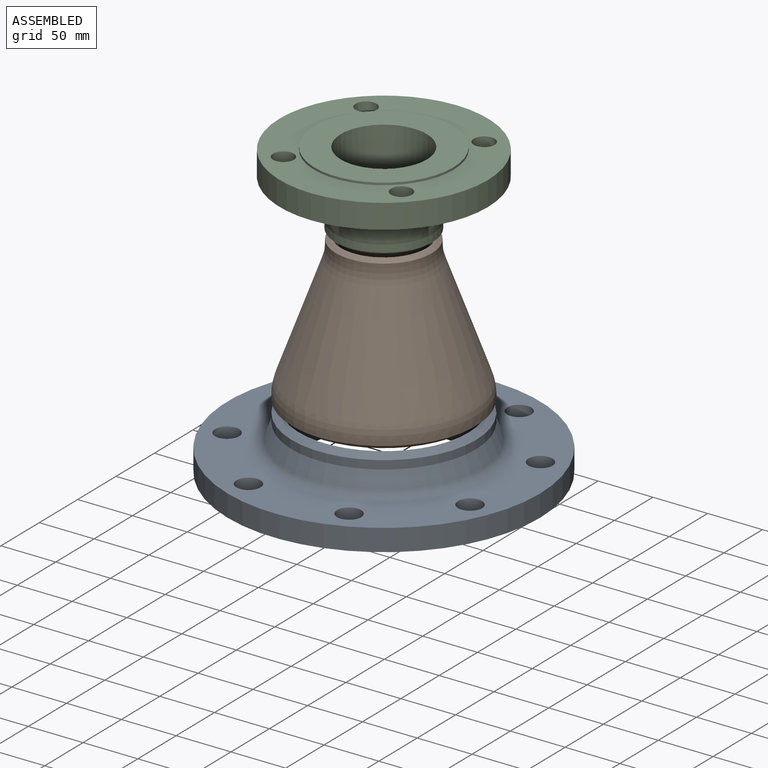
[diagram: assembled view]
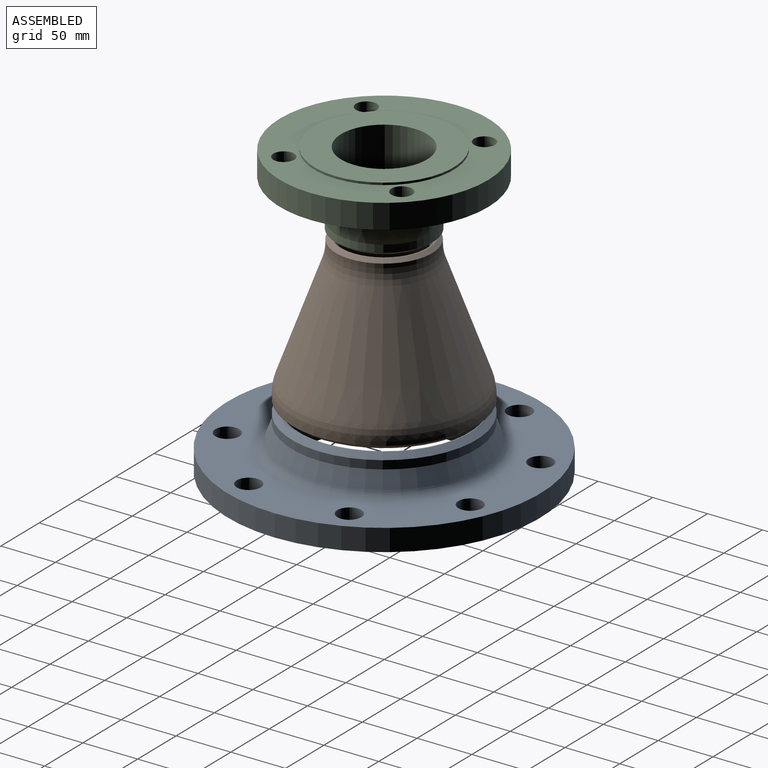
[diagram: assembled view, second angle]
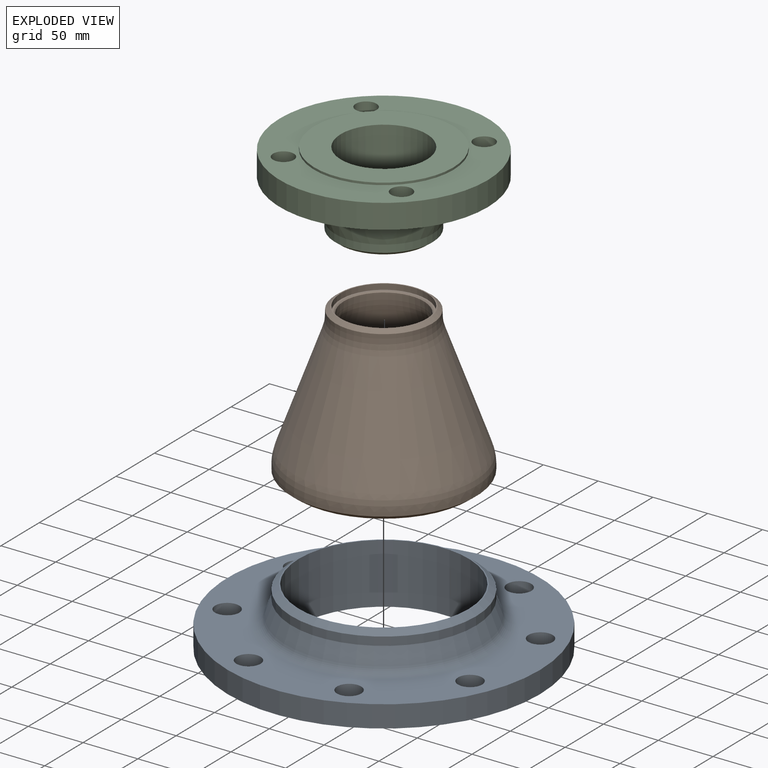
[diagram: exploded view]
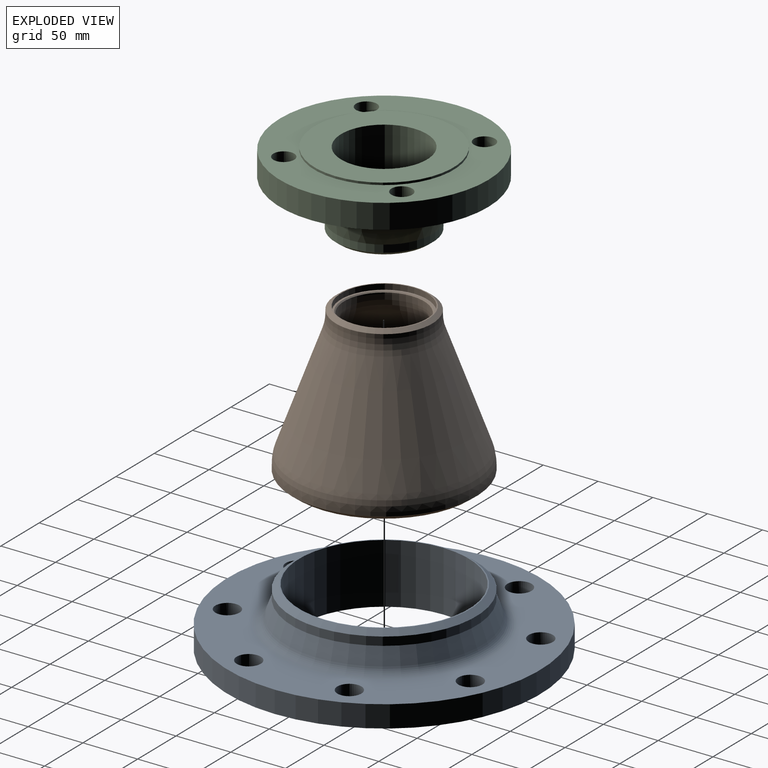
[diagram: exploded view, second angle]
ASSEMBLY  parts=3 mates=2
PART A: 19 faces, bbox 285x285x55 mm
  f0: plane 157x157mm, normal (0,0,1), area 490.1mm2, adj f1,f17
  f1: cylinder r=77.5mm len=155mm, axis (0,0,1), area 26782.1mm2, adj f0,f2
  f2: plane 212x212mm, normal (0,0,-1), area 16429.7mm2, adj f1,f3
  f3: cylinder r=106mm len=212mm, axis (0,0,1), area 1332mm2, adj f2,f4
  f4: plane 285x285mm, normal (0,0,-1), area 25454mm2, adj f3,f5,f9,f10,f11,f12,f13,f14
  f5: cylinder r=142.5mm len=285mm, axis (0,0,1), area 17907.1mm2, adj f4,f6
  f6: plane 285x285mm, normal (0,0,1), area 30000.9mm2, adj f5,f9,f10,f11,f12,f13,f14,f15
  f7: cone r=92mm half-angle=20.5deg, axis (0,0,-1), area 8449.2mm2, adj f8,f18
  f8: cylinder r=84.15mm len=168.3mm, axis (0,0,1), area 4052.5mm2, adj f7,f17
  f9: cylinder r=11mm len=22mm, axis (0,0,1), area 1382.3mm2, adj f4,f6
  f10: cylinder r=11mm len=22mm, axis (0,0,1), area 1382.3mm2, adj f4,f6
  f11: cylinder r=11mm len=22mm, axis (0,0,1), area 1382.3mm2, adj f4,f6
  f12: cylinder r=11mm len=22mm, axis (0,0,1), area 1382.3mm2, adj f4,f6
  f13: cylinder r=11mm len=22mm, axis (0,0,1), area 1382.3mm2, adj f4,f6
  f14: cylinder r=11mm len=22mm, axis (0,0,1), area 1382.3mm2, adj f4,f6
  f15: cylinder r=11mm len=22mm, axis (0,0,1), area 1382.3mm2, adj f4,f6
  f16: cylinder r=11mm len=22mm, axis (0,0,1), area 1382.3mm2, adj f4,f6
  f17: cone r=78.5mm half-angle=52.5deg, axis (0,0,-1), area 3639mm2, adj f0,f8
  f18: torus R=98.94mm, axis (0,0,-1), area 7132.7mm2, adj f6,f7
PART B: 19 faces, bbox 180.5x182.2x182.2 mm
  f0: cylinder r=84.15mm len=168.3mm, axis (-1,0,0), area 1909.5mm2, adj f3,f14
  f1: cone r=84.15mm half-angle=20deg, axis (1,0,0), area 41581.9mm2, adj f14,f15
  f2: cylinder r=44mm len=88mm, axis (-1,0,0), area 1039mm2, adj f4,f15
  f3: cone r=84.15mm half-angle=52.5deg, axis (-1,0,0), area 3639mm2, adj f0,f5
  f4: cone r=44mm half-angle=52.5deg, axis (1,0,0), area 1251.1mm2, adj f2,f13
  f5: plane 157x157mm, normal (1,0,0), area 490.1mm2, adj f3,f6
  f6: cylinder r=77.5mm len=155mm, axis (1,0,0), area 2921.7mm2, adj f5,f7
  f7: plane 155x155mm, normal (1,0,0), area 218.5mm2, adj f6,f10
  f8: cylinder r=36.5mm len=73mm, axis (-1,0,0), area 315mm2, adj f16,f18
  f9: cone r=77.05mm half-angle=20deg, axis (1,0,0), area 37261.7mm2, adj f16,f17
  f10: cylinder r=77.05mm len=154.1mm, axis (-1,0,0), area 53.4mm2, adj f7,f17
  f11: cylinder r=39.25mm len=78.5mm, axis (1,0,0), area 1233.1mm2, adj f12,f13
  f12: plane 78.5x78.5mm, normal (-1,0,0), area 422mm2, adj f11,f18
  f13: plane 80.5x80.5mm, normal (-1,0,0), area 249.8mm2, adj f4,f11
  f14: torus R=44.15mm, axis (1,0,0), area 7311.6mm2, adj f0,f1
  f15: torus R=84mm, axis (-1,0,0), area 3930.9mm2, adj f1,f2
  f16: torus R=76.5mm, axis (1,0,0), area 3273mm2, adj f8,f9
  f17: torus R=37.05mm, axis (-1,0,0), area 6688.8mm2, adj f9,f10
  f18: cone r=37.5mm half-angle=45deg, axis (-1,0,0), area 328.8mm2, adj f8,f12
PART C: 16 faces, bbox 190x190x70 mm
  f0: plane 80.5x80.5mm, normal (0,0,1), area 249.8mm2, adj f1,f13
  f1: cylinder r=39.25mm len=78.5mm, axis (0,0,1), area 17263.1mm2, adj f0,f2
  f2: plane 127x127mm, normal (0,0,-1), area 7827.9mm2, adj f1,f3
  f3: cylinder r=63.5mm len=127mm, axis (0,0,1), area 798mm2, adj f2,f4
  f4: plane 190x190mm, normal (0,0,-1), area 14545.1mm2, adj f3,f5,f9,f10,f11,f12
  f5: cylinder r=95mm len=190mm, axis (0,0,1), area 13310.9mm2, adj f4,f6
  f6: plane 190x190mm, normal (0,0,1), area 15849.7mm2, adj f5,f9,f10,f11,f12,f15
  f7: cone r=54mm half-angle=15deg, axis (0,0,-1), area 9376.8mm2, adj f8,f15
  f8: cylinder r=44.45mm len=88.9mm, axis (0,0,1), area 1892.5mm2, adj f7,f14
  f9: cylinder r=9.53mm len=22.3mm, axis (0,0,1), area 1334.6mm2, adj f4,f6
  f10: cylinder r=9.53mm len=22.3mm, axis (0,0,1), area 1334.6mm2, adj f4,f6
  f11: cylinder r=9.53mm len=22.3mm, axis (0,0,1), area 1334.6mm2, adj f4,f6
  f12: cylinder r=9.53mm len=22.3mm, axis (0,0,1), area 1334.6mm2, adj f4,f6
  f13: cylinder r=40.25mm len=80.5mm, axis (0,0,-1), area 0.3mm2, adj f0,f14
  f14: cone r=40.25mm half-angle=52.5deg, axis (0,0,-1), area 1408.7mm2, adj f8,f13
  f15: torus R=60.14mm, axis (0,0,-1), area 3660.2mm2, adj f6,f7
PLACE A t=(-0.27,-0.28,-27.69)mm fixed
PLACE B rot(axis=(0,1,0),90deg) t=(-0.27,-0.28,169.31)mm
PLACE C rot(axis=(0,1,0),180deg) t=(-0.27,-0.28,242.31)mm
MATE fastened B.f0 <-> A.f1  axis (0,0,1) through (-0.27,-0.28,30.31)mm
MATE fastened C.f1 <-> B.f0  axis (0,0,1) through (-0.27,-0.28,172.31)mm
